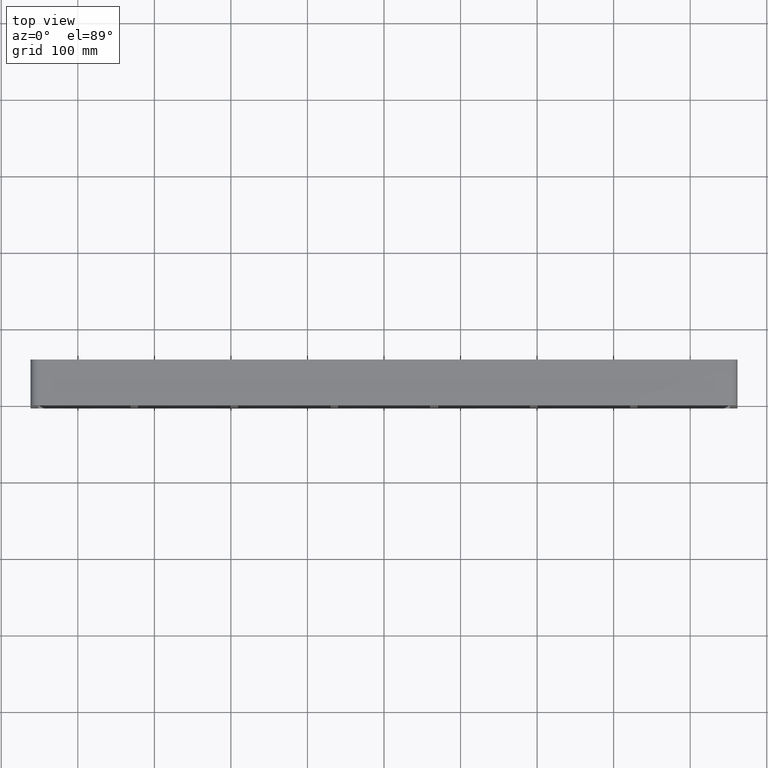
[diagram: clean part render]
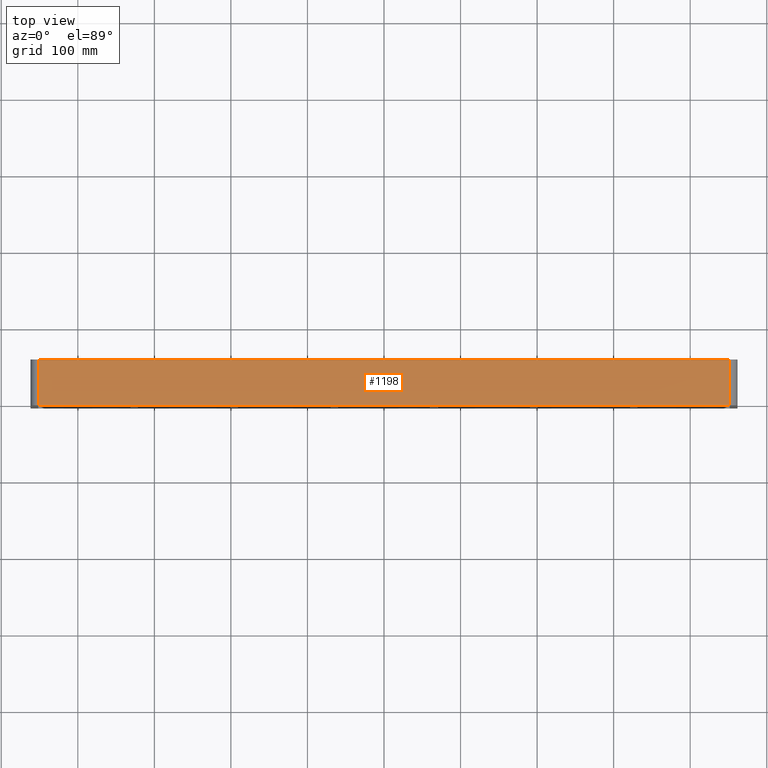
[diagram: same view with one face highlighted and labeled with its STEP entity id]
A machine part, top view. The second image highlights one B-rep face of the part: STEP entity #1198.
In plain terms, the highlighted planar face has unit normal (0, 0, 1).
Its self-contained STEP definition (entity closure, byte-faithful):
#948=CARTESIAN_POINT('',(451.75000000000011,-3.0,118.99999999999999));
#949=VERTEX_POINT('',#948);
#957=CARTESIAN_POINT('',(-451.75,-3.0,118.99999999999999));
#958=VERTEX_POINT('',#957);
#959=CARTESIAN_POINT('',(451.75000000000011,-3.0,118.99999999999999));
#960=DIRECTION('',(-1.0,0.0,0.0));
#961=VECTOR('',#960,903.50000000000011);
#962=LINE('',#959,#961);
#963=EDGE_CURVE('',#949,#958,#962,.T.);
#1083=CARTESIAN_POINT('',(451.75000000000011,57.0,118.99999999999999));
#1084=VERTEX_POINT('',#1083);
#1092=CARTESIAN_POINT('',(451.75000000000011,57.0,118.99999999999999));
#1093=DIRECTION('',(0.0,-1.0,0.0));
#1094=VECTOR('',#1093,60.0);
#1095=LINE('',#1092,#1094);
#1096=EDGE_CURVE('',#1084,#949,#1095,.T.);
#1162=CARTESIAN_POINT('',(-451.75,57.0,118.99999999999999));
#1163=VERTEX_POINT('',#1162);
#1173=CARTESIAN_POINT('',(-451.75,-3.0,118.99999999999999));
#1174=DIRECTION('',(0.0,1.0,0.0));
#1175=VECTOR('',#1174,60.0);
#1176=LINE('',#1173,#1175);
#1177=EDGE_CURVE('',#958,#1163,#1176,.T.);
#1182=CARTESIAN_POINT('',(-461.75,0.0,118.99999999999999));
#1183=DIRECTION('',(0.0,0.0,1.0));
#1184=DIRECTION('',(1.0,0.0,0.0));
#1185=AXIS2_PLACEMENT_3D('',#1182,#1183,#1184);
#1186=PLANE('',#1185);
#1187=ORIENTED_EDGE('',*,*,#1096,.F.);
#1188=CARTESIAN_POINT('',(-451.75,57.0,118.99999999999999));
#1189=DIRECTION('',(1.0,0.0,0.0));
#1190=VECTOR('',#1189,903.50000000000011);
#1191=LINE('',#1188,#1190);
#1192=EDGE_CURVE('',#1163,#1084,#1191,.T.);
#1193=ORIENTED_EDGE('',*,*,#1192,.F.);
#1194=ORIENTED_EDGE('',*,*,#1177,.F.);
#1195=ORIENTED_EDGE('',*,*,#963,.F.);
#1196=EDGE_LOOP('',(#1187,#1193,#1194,#1195));
#1197=FACE_OUTER_BOUND('',#1196,.T.);
#1198=ADVANCED_FACE('',(#1197),#1186,.T.);